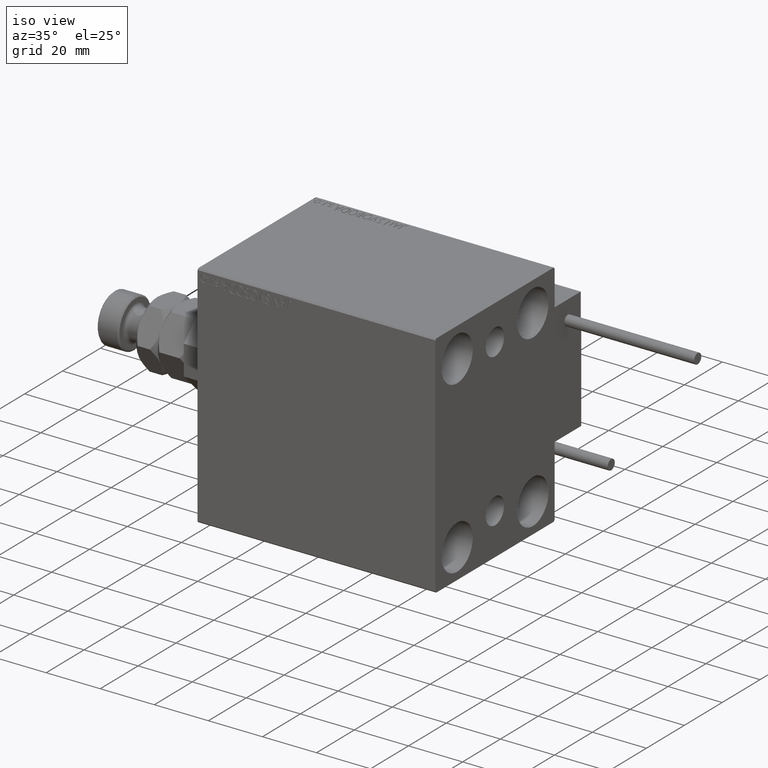
[diagram: clean part render]
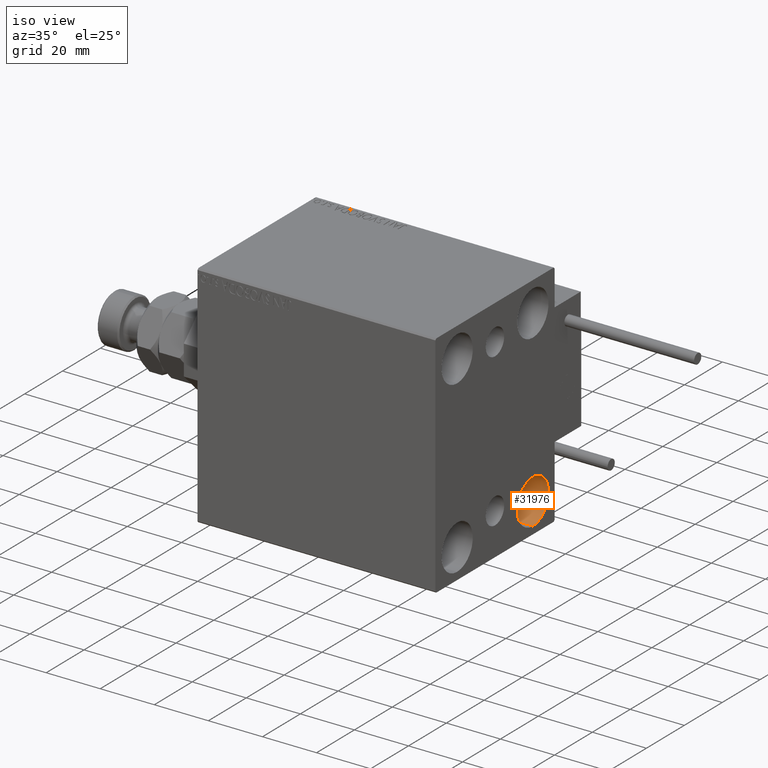
[diagram: same view with one face highlighted and labeled with its STEP entity id]
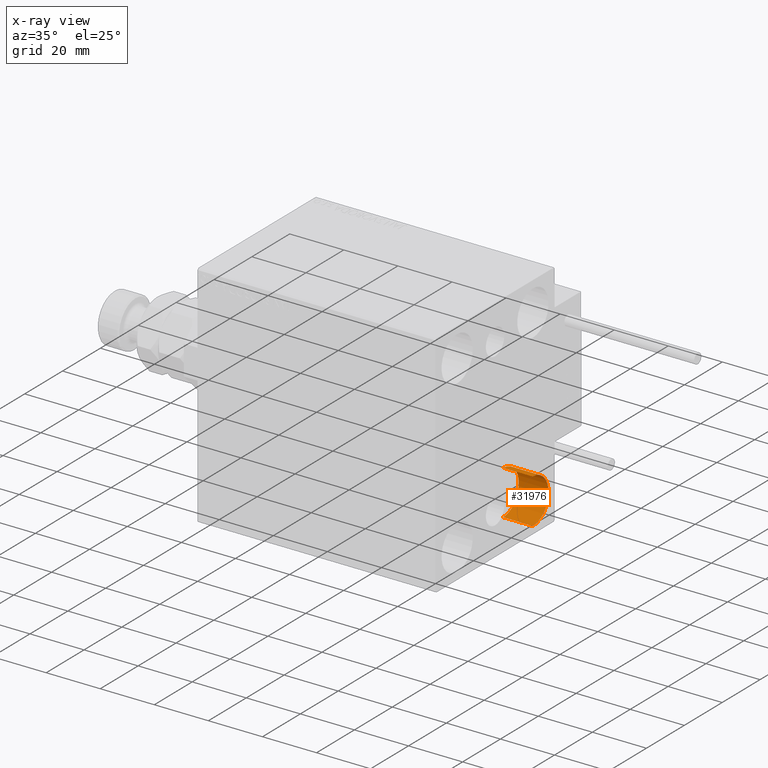
[diagram: x-ray of the same camera — body ghosted, the highlighted face saturated]
A machine part, iso view. The second image highlights one B-rep face of the part: STEP entity #31976.
The next image is the same camera in x-ray: the body ghosted, the highlighted face saturated — about 0% of this face is hidden behind the body in this view.
In plain terms, the highlighted cylindrical surface (edge-blend (fillet) strip) has radius 8.25 mm, axis along (1, 0, 0).
Its self-contained STEP definition (entity closure, byte-faithful):
#470 = ORIENTED_EDGE ( 'NONE', *, *, #19784, .T. ) ;
#4974 = DIRECTION ( 'NONE',  ( 1.000000000000000000, -0.000000000000000000, -0.000000000000000000 ) ) ;
#4996 = EDGE_CURVE ( 'NONE', #30771, #32186, #20421, .T. ) ;
#7641 = VERTEX_POINT ( 'NONE', #32906 ) ;
#9012 = FACE_OUTER_BOUND ( 'NONE', #17540, .T. ) ;
#9185 = AXIS2_PLACEMENT_3D ( 'NONE', #32306, #35203, #19252 ) ;
#9260 = CYLINDRICAL_SURFACE ( 'NONE', #24903, 8.250000000000000000 ) ;
#11674 = VECTOR ( 'NONE', #33392, 1000.000000000000000 ) ;
#13612 = VECTOR ( 'NONE', #4974, 1000.000000000000000 ) ;
#15184 = ORIENTED_EDGE ( 'NONE', *, *, #38229, .T. ) ;
#17540 = EDGE_LOOP ( 'NONE', ( #34017, #15184, #470, #41862 ) ) ;
#19252 = DIRECTION ( 'NONE',  ( 0.000000000000000000, 0.000000000000000000, 1.000000000000000000 ) ) ;
#19784 = EDGE_CURVE ( 'NONE', #38039, #7641, #37077, .T. ) ;
#20421 = LINE ( 'NONE', #24868, #13612 ) ;
#22550 = DIRECTION ( 'NONE',  ( -1.000000000000000000, -0.000000000000000000, -0.000000000000000000 ) ) ;
#24735 = EDGE_CURVE ( 'NONE', #32186, #7641, #36289, .T. ) ;
#24868 = CARTESIAN_POINT ( 'NONE',  ( 77.00000000000000000, 19.99999999999999645, -23.24999999999999289 ) ) ;
#24903 = AXIS2_PLACEMENT_3D ( 'NONE', #28358, #28093, #25218 ) ;
#25218 = DIRECTION ( 'NONE',  ( 0.000000000000000000, 0.000000000000000000, -1.000000000000000000 ) ) ;
#28093 = DIRECTION ( 'NONE',  ( 1.000000000000000000, -0.000000000000000000, -0.000000000000000000 ) ) ;
#28358 = CARTESIAN_POINT ( 'NONE',  ( 77.00000000000000000, 19.99999999999999645, -31.49999999999999289 ) ) ;
#28976 = CARTESIAN_POINT ( 'NONE',  ( 77.00000000000000000, 19.99999999999999645, -39.74999999999999289 ) ) ;
#29868 = CARTESIAN_POINT ( 'NONE',  ( 88.00000000000000000, 19.99999999999999645, -31.49999999999999289 ) ) ;
#30771 = VERTEX_POINT ( 'NONE', #49329 ) ;
#31755 = CIRCLE ( 'NONE', #9185, 8.250000000000000000 ) ;
#31976 = ADVANCED_FACE ( 'NONE', ( #9012 ), #9260, .F. ) ;
#32186 = VERTEX_POINT ( 'NONE', #39058 ) ;
#32306 = CARTESIAN_POINT ( 'NONE',  ( 77.00000000000000000, 19.99999999999999645, -31.49999999999999289 ) ) ;
#32906 = CARTESIAN_POINT ( 'NONE',  ( 88.00000000000000000, 19.99999999999999645, -39.74999999999999289 ) ) ;
#33392 = DIRECTION ( 'NONE',  ( 1.000000000000000000, -0.000000000000000000, -0.000000000000000000 ) ) ;
#34017 = ORIENTED_EDGE ( 'NONE', *, *, #4996, .F. ) ;
#35203 = DIRECTION ( 'NONE',  ( -1.000000000000000000, -0.000000000000000000, -0.000000000000000000 ) ) ;
#36289 = CIRCLE ( 'NONE', #51322, 8.250000000000000000 ) ;
#37077 = LINE ( 'NONE', #45948, #11674 ) ;
#38039 = VERTEX_POINT ( 'NONE', #28976 ) ;
#38229 = EDGE_CURVE ( 'NONE', #30771, #38039, #31755, .T. ) ;
#39058 = CARTESIAN_POINT ( 'NONE',  ( 88.00000000000000000, 19.99999999999999645, -23.24999999999999289 ) ) ;
#41862 = ORIENTED_EDGE ( 'NONE', *, *, #24735, .F. ) ;
#45948 = CARTESIAN_POINT ( 'NONE',  ( 77.00000000000000000, 19.99999999999999645, -39.74999999999999289 ) ) ;
#46091 = DIRECTION ( 'NONE',  ( 0.000000000000000000, 0.000000000000000000, 1.000000000000000000 ) ) ;
#49329 = CARTESIAN_POINT ( 'NONE',  ( 77.00000000000000000, 19.99999999999999645, -23.24999999999999289 ) ) ;
#51322 = AXIS2_PLACEMENT_3D ( 'NONE', #29868, #22550, #46091 ) ;